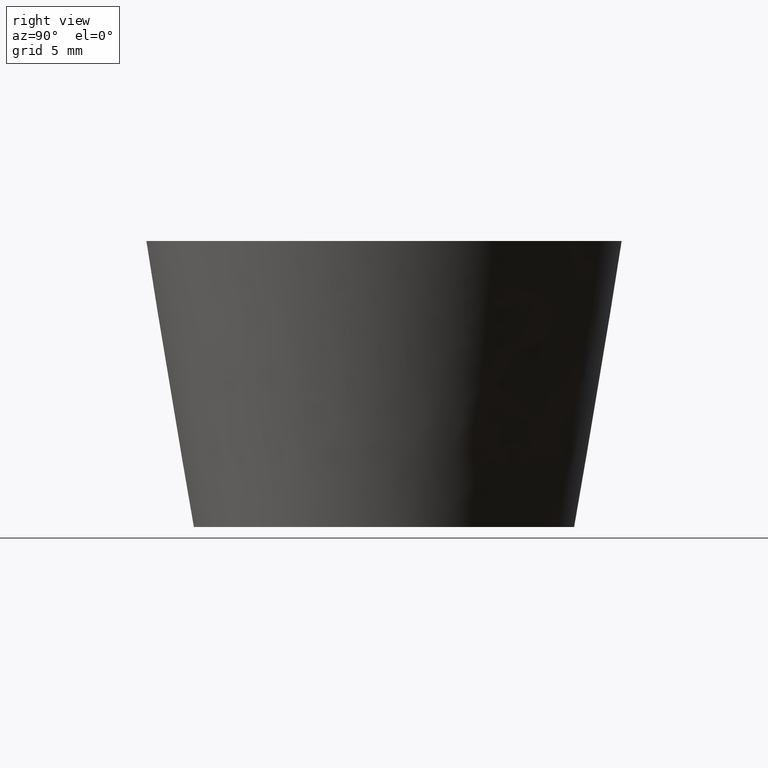
[diagram: clean part render]
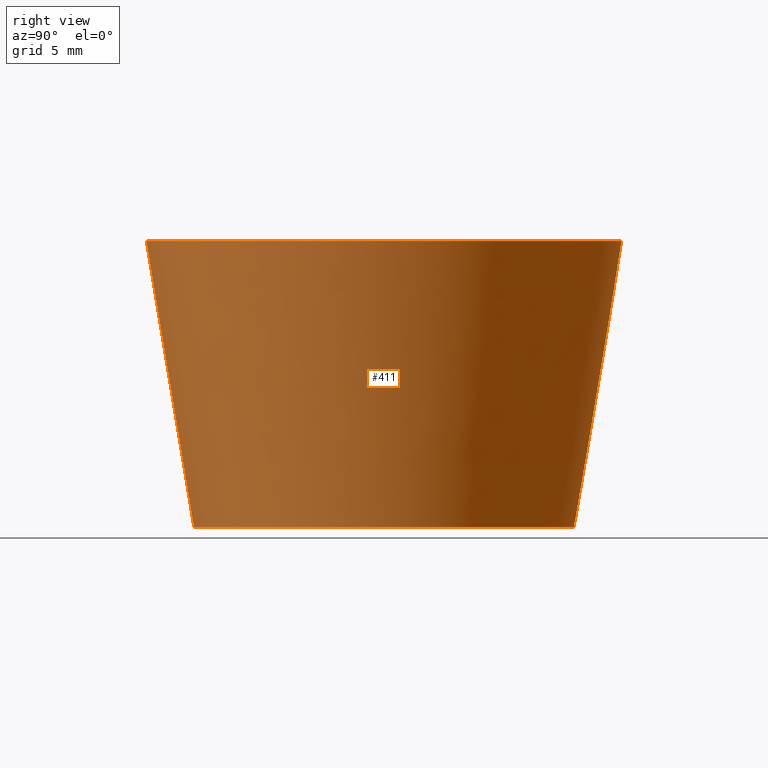
[diagram: same view with one face highlighted and labeled with its STEP entity id]
A machine part, right view. The second image highlights one B-rep face of the part: STEP entity #411.
In plain terms, the highlighted face is a freeform B-spline surface patch.
Its self-contained STEP definition (entity closure, byte-faithful):
#250=CARTESIAN_POINT('',(-0.784585127532863,9.969173373309561,11.999997470845130));
#251=VERTEX_POINT('',#250);
#265=CARTESIAN_POINT('',(-0.627667634998426,7.975338697900941,-0.000002247642436));
#266=VERTEX_POINT('',#265);
#267=CARTESIAN_POINT('',(-0.627667634998426,7.975338697900941,-0.000002247642436));
#268=CARTESIAN_POINT('',(-0.784585127532863,9.969173373309561,11.999997470845130));
#269=QUASI_UNIFORM_CURVE('',1,(#267,#268),.UNSPECIFIED.,.F.,.U.);
#270=EDGE_CURVE('',#266,#251,#269,.T.);
#287=CARTESIAN_POINT('',(0.627667634998426,-7.975338697900941,-0.000002247642436));
#288=VERTEX_POINT('',#287);
#304=CARTESIAN_POINT('',(0.784585127532862,-9.969173373309561,11.999997470845139));
#305=VERTEX_POINT('',#304);
#306=CARTESIAN_POINT('',(0.627667634998426,-7.975338697900941,-0.000002247642436));
#307=CARTESIAN_POINT('',(0.784585127532862,-9.969173373309561,11.999997470845139));
#308=QUASI_UNIFORM_CURVE('',1,(#306,#307),.UNSPECIFIED.,.F.,.U.);
#309=EDGE_CURVE('',#288,#305,#308,.T.);
#329=CARTESIAN_POINT('',(0.623749811036372,-7.925492803178367,-0.300000000000000));
#330=CARTESIAN_POINT('',(8.549242614214739,-7.301742992141994,-0.300000000000000));
#331=CARTESIAN_POINT('',(7.925492803178367,0.623749811036372,-0.300000000000000));
#332=CARTESIAN_POINT('',(7.301742992141994,8.549242614214739,-0.300000000000000));
#333=CARTESIAN_POINT('',(-0.623749811036372,7.925492803178367,-0.300000000000000));
#334=CARTESIAN_POINT('',(0.788611985934507,-10.020265350685101,12.307499999999999));
#335=CARTESIAN_POINT('',(10.808877336619602,-9.231653364750589,12.307500000000005));
#336=CARTESIAN_POINT('',(10.020265350685101,0.788611985934507,12.307499999999999));
#337=CARTESIAN_POINT('',(9.231653364750589,10.808877336619602,12.307500000000005));
#338=CARTESIAN_POINT('',(-0.788611985934507,10.020265350685101,12.307499999999999));
#346=(BOUNDED_SURFACE()B_SPLINE_SURFACE(2,1,((#329,#334),(#330,#335),(#331,#336),(#332,#337),(#333,#338)),.UNSPECIFIED.,.F.,.F.,.U.)B_SPLINE_SURFACE_WITH_KNOTS((3,2,3),(2,2),(0.0,16.653456275210271,33.306912550420542),(0.0,12.781404766789141),.UNSPECIFIED.)GEOMETRIC_REPRESENTATION_ITEM()RATIONAL_B_SPLINE_SURFACE(((1.0,1.0),(0.707106781186548,0.707106781186548),(1.0,1.0),(0.707106781186548,0.707106781186548),(1.0,1.0)))REPRESENTATION_ITEM('')SURFACE());
#347=CARTESIAN_POINT('',(10.0,0.0,12.0));
#348=VERTEX_POINT('',#347);
#349=CARTESIAN_POINT('',(-0.784585127532863,9.969173373309561,11.999997470845130));
#350=CARTESIAN_POINT('',(-0.392898125818108,9.999999587403069,11.999997516773519));
#351=CARTESIAN_POINT('',(0.000000031822137,9.999999595658411,11.999997566458530));
#352=CARTESIAN_POINT('',(10.000000015285925,9.999999805772458,11.999998831035963));
#353=CARTESIAN_POINT('',(10.0,0.0,12.0));
#361=(BOUNDED_CURVE()B_SPLINE_CURVE(2,(#349,#350,#351,#352,#353),.UNSPECIFIED.,.F.,.U.)B_SPLINE_CURVE_WITH_KNOTS((3,2,3),(0.236331400309219,0.250000000000000,0.500000000000000),.UNSPECIFIED.)CURVE()GEOMETRIC_REPRESENTATION_ITEM()RATIONAL_B_SPLINE_CURVE((0.969723564189059,0.983986239359578,1.0,0.707106781186548,1.0))REPRESENTATION_ITEM(''));
#362=EDGE_CURVE('',#251,#348,#361,.T.);
#363=ORIENTED_EDGE('',*,*,#362,.T.);
#364=CARTESIAN_POINT('',(10.0,0.0,12.0));
#365=CARTESIAN_POINT('',(9.999999983463788,-9.243910098048547,11.999998735422569));
#366=CARTESIAN_POINT('',(0.784585127532862,-9.969173373309561,11.999997470845143));
#374=(BOUNDED_CURVE()B_SPLINE_CURVE(2,(#364,#365,#366),.UNSPECIFIED.,.F.,.U.)B_SPLINE_CURVE_WITH_KNOTS((3,3),(0.500000000000000,0.736331400309219),.UNSPECIFIED.)CURVE()GEOMETRIC_REPRESENTATION_ITEM()RATIONAL_B_SPLINE_CURVE((1.0,0.723120541826970,0.969723564189059))REPRESENTATION_ITEM(''));
#375=EDGE_CURVE('',#348,#305,#374,.T.);
#376=ORIENTED_EDGE('',*,*,#375,.T.);
#377=ORIENTED_EDGE('',*,*,#309,.F.);
#378=CARTESIAN_POINT('',(8.0,0.0,0.0));
#379=VERTEX_POINT('',#378);
#380=CARTESIAN_POINT('',(8.0,0.0,0.0));
#381=CARTESIAN_POINT('',(7.999999985304389,-7.395128491465187,-0.000001123821218));
#382=CARTESIAN_POINT('',(0.627667634998426,-7.975338697900941,-0.000002247642436));
#390=(BOUNDED_CURVE()B_SPLINE_CURVE(2,(#380,#381,#382),.UNSPECIFIED.,.F.,.U.)B_SPLINE_CURVE_WITH_KNOTS((3,3),(0.500000000000000,0.736331410284618),.UNSPECIFIED.)CURVE()GEOMETRIC_REPRESENTATION_ITEM()RATIONAL_B_SPLINE_CURVE((1.0,0.723120530140062,0.969723585006977))REPRESENTATION_ITEM(''));
#391=EDGE_CURVE('',#379,#288,#390,.T.);
#392=ORIENTED_EDGE('',*,*,#391,.F.);
#393=CARTESIAN_POINT('',(-0.627667634998426,7.975338697900941,-0.000002247642436));
#394=CARTESIAN_POINT('',(-0.314318264650338,7.999999633327826,-0.000002206826229));
#395=CARTESIAN_POINT('',(0.000000028280102,7.999999640664289,-0.000002162671533));
#396=CARTESIAN_POINT('',(8.000000013584492,7.999999827391257,-0.000001038850315));
#397=CARTESIAN_POINT('',(8.0,0.0,0.0));
#405=(BOUNDED_CURVE()B_SPLINE_CURVE(2,(#393,#394,#395,#396,#397),.UNSPECIFIED.,.F.,.U.)B_SPLINE_CURVE_WITH_KNOTS((3,2,3),(0.236331410284618,0.250000000000000,0.500000000000000),.UNSPECIFIED.)CURVE()GEOMETRIC_REPRESENTATION_ITEM()RATIONAL_B_SPLINE_CURVE((0.969723585006977,0.983986251046486,1.0,0.707106781186548,1.0))REPRESENTATION_ITEM(''));
#406=EDGE_CURVE('',#266,#379,#405,.T.);
#407=ORIENTED_EDGE('',*,*,#406,.F.);
#408=ORIENTED_EDGE('',*,*,#270,.T.);
#409=EDGE_LOOP('',(#363,#376,#377,#392,#407,#408));
#410=FACE_OUTER_BOUND('',#409,.T.);
#411=ADVANCED_FACE('',(#410),#346,.T.);